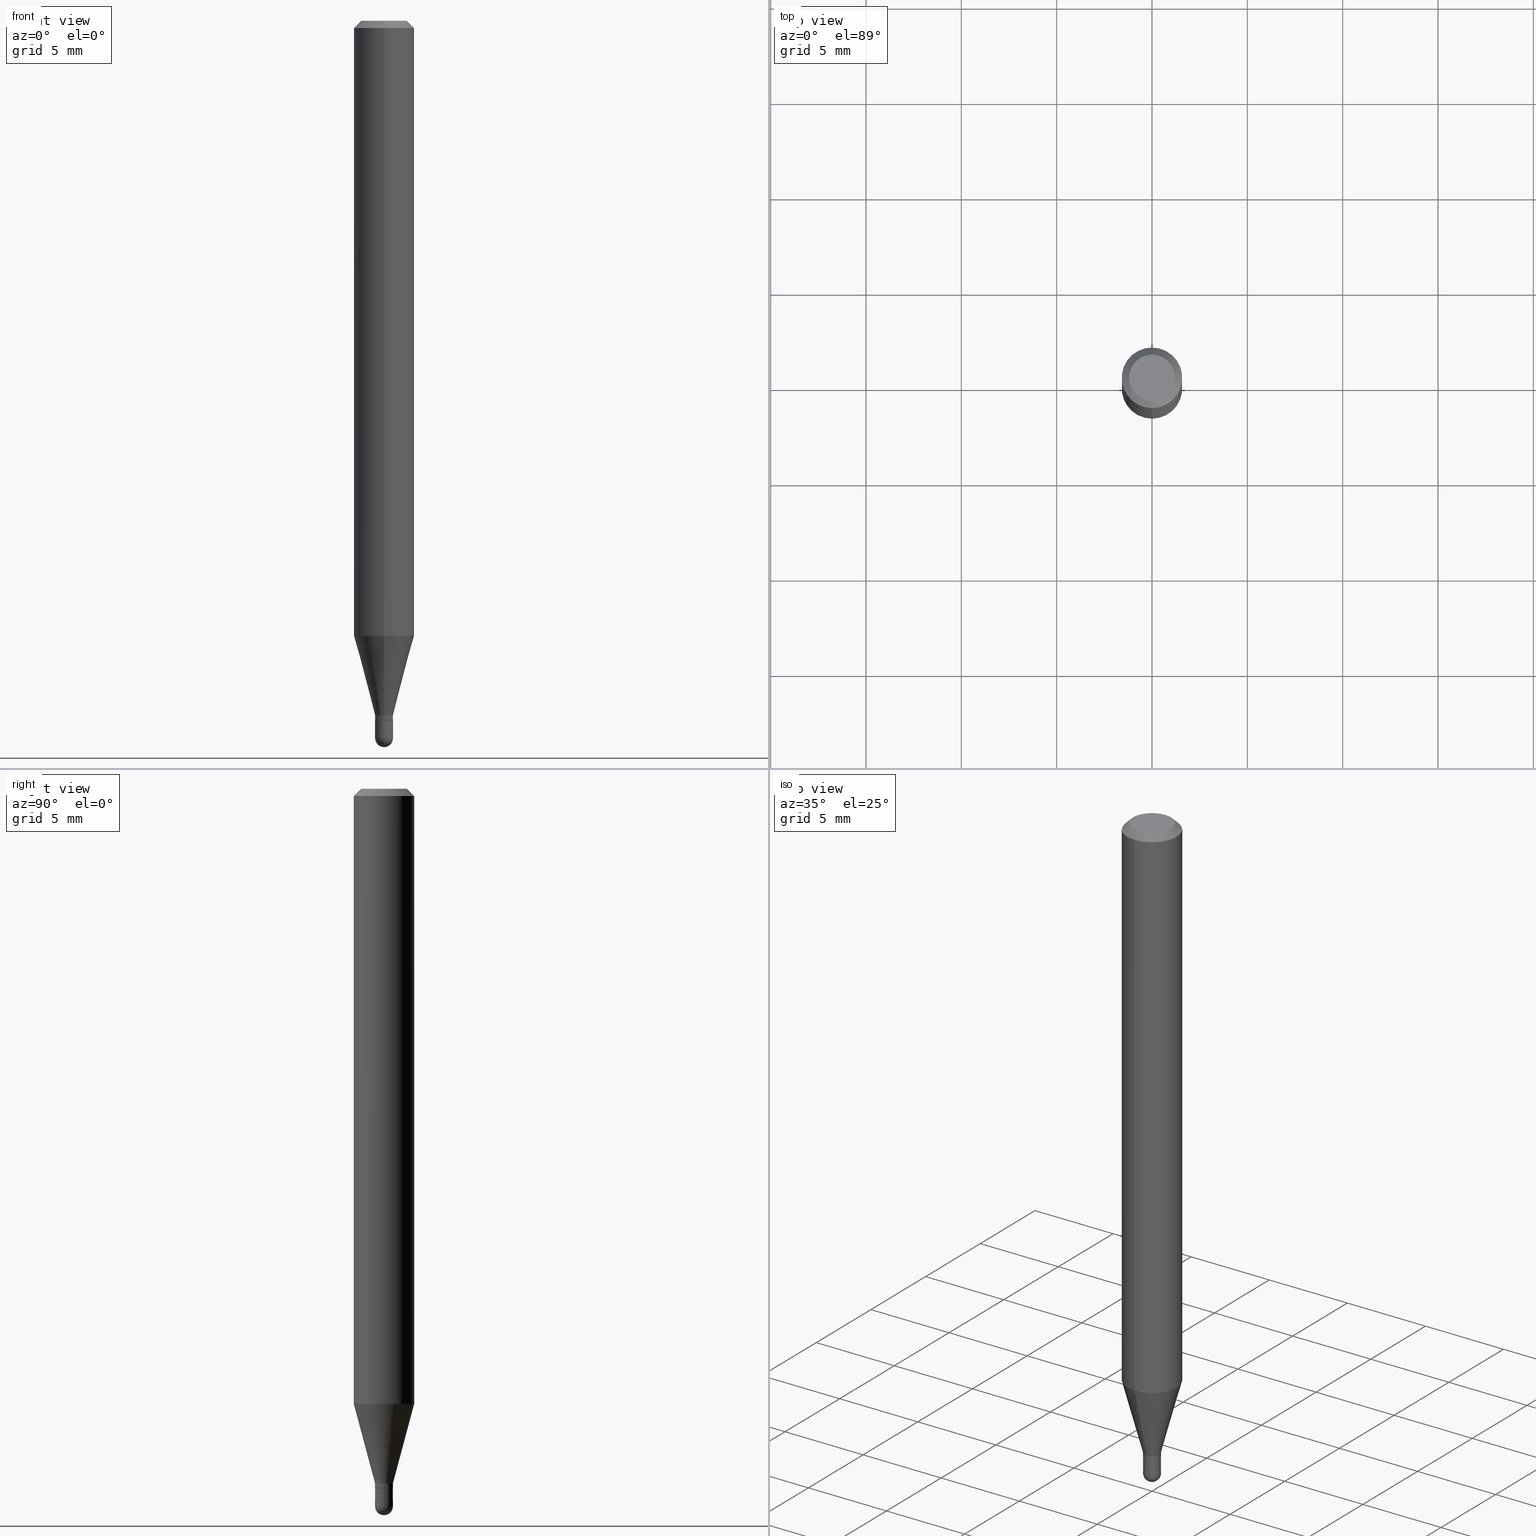
[diagram: canonical four-view strip — front | top / right | iso, engineering-drawing reading convention]
A machine part, canonical four-view strip (front | top / right | iso — engineering-drawing reading convention). The complete STEP part file that produces these views, byte-faithful:
ISO-10303-21;
HEADER;
FILE_DESCRIPTION (( 'STEP AP203' ),
    '1' );
FILE_NAME ('03098.STEP',
    '2024-03-08T18:10:42',
    ( '' ),
    ( '' ),
    'SwSTEP 2.0',
    'SolidWorks 2023',
    '' );
FILE_SCHEMA (( 'CONFIG_CONTROL_DESIGN' ));
ENDSEC;

DATA;
#1 = CARTESIAN_POINT ( 'NONE',  ( -4.364351673553912750E-16, -0.06250000000000005551, -0.01499999999999954321 ) ) ;
#2 = DIRECTION ( 'NONE',  ( -6.982962677686265133E-15, -1.000000000000000000, 0.000000000000000000 ) ) ;
#3 = CONICAL_SURFACE ( 'NONE', #320, 0.01799999999999999864, 0.7853981633974760346 ) ;
#4 = CIRCLE ( 'NONE', #30, 0.01849999999999992623 ) ;
#5 = DIRECTION ( 'NONE',  ( 1.000000000000000000, -6.982962677686266711E-15, 4.876176775795935232E-29 ) ) ;
#6 = DIRECTION ( 'NONE',  ( -6.982962677686265922E-15, -1.000000000000000000, 3.483106191921935554E-15 ) ) ;
#7 = CARTESIAN_POINT ( 'NONE',  ( 3.668182512616006343E-31, -5.237251647062084431E-17, -0.01499999999999976179 ) ) ;
#8 = APPROVAL_STATUS ( 'not_yet_approved' ) ;
#9 = DIRECTION ( 'NONE',  ( -6.982962677686266711E-15, -1.000000000000000000, 3.491501098041445958E-15 ) ) ;
#10 = COORDINATED_UNIVERSAL_TIME_OFFSET ( 5, 0, .BEHIND. ) ;
#11 = CALENDAR_DATE ( 2024, 8, 3 ) ;
#12 = CARTESIAN_POINT ( 'NONE',  ( 1.314504061156179609E-16, 0.01849999999999992276, -6.459277031376646644E-17 ) ) ;
#13 = AXIS2_PLACEMENT_3D ( 'NONE', #482, #368, #47 ) ;
#14 = AXIS2_PLACEMENT_3D ( 'NONE', #462, #195, #119 ) ;
#15 = CYLINDRICAL_SURFACE ( 'NONE', #178, 0.01849999999999992276 ) ;
#16 = CARTESIAN_POINT ( 'NONE',  ( 3.531237032145065066E-29, -5.041727585571848055E-15, -1.444000000000000172 ) ) ;
#17 = ORIENTED_EDGE ( 'NONE', *, *, #113, .F. ) ;
#18 = LENGTH_MEASURE_WITH_UNIT ( LENGTH_MEASURE( 0.02539999999999999897 ), #105 );
#19 = ORIENTED_EDGE ( 'NONE', *, *, #412, .F. ) ;
#20 = PERSON_AND_ORGANIZATION_ROLE ( 'creator' ) ;
#21 = VERTEX_POINT ( 'NONE', #272 ) ;
#22 = ORIENTED_EDGE ( 'NONE', *, *, #254, .F. ) ;
#23 = ORIENTED_EDGE ( 'NONE', *, *, #295, .T. ) ;
#24 = CYLINDRICAL_SURFACE ( 'NONE', #14, 0.06250000000000000000 ) ;
#25 = ORIENTED_EDGE ( 'NONE', *, *, #148, .F. ) ;
#26 = PERSON_AND_ORGANIZATION ( #396, #393 ) ;
#27 = EDGE_CURVE ( 'NONE', #415, #73, #255, .T. ) ;
#28 = CYLINDRICAL_SURFACE ( 'NONE', #208, 0.01849999999999999908 ) ;
#29 = CIRCLE ( 'NONE', #57, 0.01849999999999999908 ) ;
#30 = AXIS2_PLACEMENT_3D ( 'NONE', #245, #357, #161 ) ;
#31 = EDGE_LOOP ( 'NONE', ( #499, #40, #114, #253, #67 ) ) ;
#32 = ORIENTED_EDGE ( 'NONE', *, *, #412, .T. ) ;
#33 = EDGE_CURVE ( 'NONE', #461, #64, #189, .T. ) ;
#34 = CARTESIAN_POINT ( 'NONE',  ( 0.000000000000000000, 0.000000000000000000, 0.000000000000000000 ) ) ;
#35 = EDGE_CURVE ( 'NONE', #492, #461, #169, .T. ) ;
#36 = CYLINDRICAL_SURFACE ( 'NONE', #288, 0.06250000000000000000 ) ;
#37 = DIRECTION ( 'NONE',  ( -6.982962677686265922E-15, -1.000000000000000000, 0.000000000000000000 ) ) ;
#38 = AXIS2_PLACEMENT_3D ( 'NONE', #7, #170, #128 ) ;
#39 = DIRECTION ( 'NONE',  ( -2.445455008410709746E-29, 3.491501098041445170E-15, 1.000000000000000000 ) ) ;
#40 = ORIENTED_EDGE ( 'NONE', *, *, #433, .T. ) ;
#41 = APPROVAL_ROLE ( '' ) ;
#42 = CARTESIAN_POINT ( 'NONE',  ( -1.291848095371605232E-16, -0.01850000000000502978, -1.443500000000000227 ) ) ;
#43 = DIRECTION ( 'NONE',  ( -2.445468806185136877E-29, 3.491481338843145188E-15, 1.000000000000000000 ) ) ;
#44 = CARTESIAN_POINT ( 'NONE',  ( 3.506782482060956982E-29, -5.006812574591430922E-15, -1.433999999999999719 ) ) ;
#45 = CLOSED_SHELL ( 'NONE', ( #429, #493, #271, #49, #222 ) ) ;
#46 = AXIS2_PLACEMENT_3D ( 'NONE', #71, #273, #350 ) ;
#47 = DIRECTION ( 'NONE',  ( -6.982962677686265922E-15, -1.000000000000000000, 0.000000000000000000 ) ) ;
#48 = CARTESIAN_POINT ( 'NONE',  ( -1.291848095371603260E-16, -0.01850000000000492917, -1.433999999999999719 ) ) ;
#49 = ADVANCED_FACE ( 'NONE', ( #398 ), #333, .T. ) ;
#50 = DIRECTION ( 'NONE',  ( 4.937700262164548042E-15, 0.7071067811865451302, -0.7071067811865499042 ) ) ;
#51 = PERSON_AND_ORGANIZATION ( #396, #393 ) ;
#52 = CARTESIAN_POINT ( 'NONE',  ( -1.256933281983174667E-16, -0.01800000000000503975, -1.444000000000000172 ) ) ;
#53 = EDGE_CURVE ( 'NONE', #240, #146, #434, .T. ) ;
#54 =( NAMED_UNIT ( * ) SI_UNIT ( $, .STERADIAN. ) SOLID_ANGLE_UNIT ( ) );
#55 = DIRECTION ( 'NONE',  ( -6.982962677686265922E-15, -1.000000000000000000, 0.000000000000000000 ) ) ;
#56 = ORIENTED_EDGE ( 'NONE', *, *, #386, .T. ) ;
#57 = AXIS2_PLACEMENT_3D ( 'NONE', #263, #219, #173 ) ;
#58 = APPROVAL_ROLE ( '' ) ;
#59 = CIRCLE ( 'NONE', #234, 0.01849999999999992623 ) ;
#60 = EDGE_LOOP ( 'NONE', ( #450, #388, #494, #246 ) ) ;
#61 = COORDINATED_UNIVERSAL_TIME_OFFSET ( 5, 0, .BEHIND. ) ;
#62 = EDGE_CURVE ( 'NONE', #149, #151, #365, .T. ) ;
#63 = CARTESIAN_POINT ( 'NONE',  ( 3.622962036363280209E-29, -5.172629603496120178E-15, -1.481500000000000039 ) ) ;
#64 = VERTEX_POINT ( 'NONE', #1 ) ;
#65 = EDGE_CURVE ( 'NONE', #302, #226, #488, .T. ) ;
#66 = DIRECTION ( 'NONE',  ( 1.000000000000000000, -6.982962677686254089E-15, 0.000000000000000000 ) ) ;
#67 = ORIENTED_EDGE ( 'NONE', *, *, #344, .F. ) ;
#68 = ADVANCED_BREP_SHAPE_REPRESENTATION ( '03098', ( #121, #454, #335 ), #102 ) ;
#69 = VECTOR ( 'NONE', #326, 39.37007874015749564 ) ;
#70 = AXIS2_PLACEMENT_3D ( 'NONE', #75, #321, #468 ) ;
#71 = CARTESIAN_POINT ( 'NONE',  ( 3.105213739144405551E-29, -4.433472356918211735E-15, -1.269789764466969340 ) ) ;
#72 = ORIENTED_EDGE ( 'NONE', *, *, #62, .F. ) ;
#73 = VERTEX_POINT ( 'NONE', #480 ) ;
#74 = ORIENTED_EDGE ( 'NONE', *, *, #280, .F. ) ;
#75 = CARTESIAN_POINT ( 'NONE',  ( 3.622962036363280209E-29, -5.172629603496120178E-15, -1.481500000000000039 ) ) ;
#76 = ORIENTED_EDGE ( 'NONE', *, *, #228, .F. ) ;
#77 = ORIENTED_EDGE ( 'NONE', *, *, #228, .T. ) ;
#78 = APPROVAL_DATE_TIME ( #391, #312 ) ;
#79 = EDGE_CURVE ( 'NONE', #302, #394, #266, .T. ) ;
#80 = DATE_AND_TIME ( #11, #435 ) ;
#81 = CARTESIAN_POINT ( 'NONE',  ( 0.000000000000000000, 0.000000000000000000, 0.000000000000000000 ) ) ;
#82 = CONICAL_SURFACE ( 'NONE', #207, 0.01849999999999992276, 0.2617993877991501850 ) ;
#83 = SHAPE_DEFINITION_REPRESENTATION ( #317, #68 ) ;
#84 = DIRECTION ( 'NONE',  ( -6.982962677686265922E-15, -1.000000000000000000, 3.491501098041445170E-15 ) ) ;
#85 = FACE_OUTER_BOUND ( 'NONE', #236, .T. ) ;
#86 = AXIS2_PLACEMENT_3D ( 'NONE', #252, #366, #139 ) ;
#87 = CONICAL_SURFACE ( 'NONE', #200, 0.06250000000000000000, 0.7853981633974483900 ) ;
#88 = DIRECTION ( 'NONE',  ( -6.982962677686265133E-15, -1.000000000000000000, 0.000000000000000000 ) ) ;
#89 = EDGE_CURVE ( 'NONE', #423, #21, #223, .T. ) ;
#90 = CYLINDRICAL_SURFACE ( 'NONE', #452, 0.01849999999999999908 ) ;
#91 = CARTESIAN_POINT ( 'NONE',  ( 3.531237032145065066E-29, -5.041727585571848055E-15, -1.444000000000000172 ) ) ;
#92 = FACE_OUTER_BOUND ( 'NONE', #157, .T. ) ;
#93 = VECTOR ( 'NONE', #267, 39.37007874015748143 ) ;
#94 = CARTESIAN_POINT ( 'NONE',  ( 4.440892098500933817E-16, 0.06249999999999555217, -1.269789764466969562 ) ) ;
#95 = CARTESIAN_POINT ( 'NONE',  ( 1.291848095372312248E-16, 0.01849999999999495798, -1.444000000000000172 ) ) ;
#96 = LINE ( 'NONE', #98, #232 ) ;
#97 = CARTESIAN_POINT ( 'NONE',  ( 1.314504061156530405E-16, 0.01849999999999491634, -1.433999999999999719 ) ) ;
#98 = CARTESIAN_POINT ( 'NONE',  ( 4.364351673553919652E-16, 0.06249999999999995143, -0.01499999999999997863 ) ) ;
#99 = CARTESIAN_POINT ( 'NONE',  ( 3.531237032145065066E-29, -5.041727585571848055E-15, -1.444000000000000172 ) ) ;
#100 = ORIENTED_EDGE ( 'NONE', *, *, #136, .T. ) ;
#101 = AXIS2_PLACEMENT_3D ( 'NONE', #124, #291, #401 ) ;
#102 =( GEOMETRIC_REPRESENTATION_CONTEXT ( 3 ) GLOBAL_UNCERTAINTY_ASSIGNED_CONTEXT ( ( #251 ) ) GLOBAL_UNIT_ASSIGNED_CONTEXT ( ( #337, #440, #54 ) ) REPRESENTATION_CONTEXT ( 'NONE', 'WORKASPACE' ) );
#103 = DIRECTION ( 'NONE',  ( -2.445468806185136597E-29, 3.491481338843145583E-15, 1.000000000000000000 ) ) ;
#104 = EDGE_LOOP ( 'NONE', ( #390, #358 ) ) ;
#105 =( LENGTH_UNIT ( ) NAMED_UNIT ( * ) SI_UNIT ( $, .METRE. ) );
#106 = EDGE_CURVE ( 'NONE', #423, #198, #485, .T. ) ;
#107 = ORIENTED_EDGE ( 'NONE', *, *, #509, .T. ) ;
#108 = ORIENTED_EDGE ( 'NONE', *, *, #425, .F. ) ;
#109 = ADVANCED_FACE ( 'NONE', ( #166 ), #3, .T. ) ;
#110 = DIRECTION ( 'NONE',  ( 6.982962677686265922E-15, 1.000000000000000000, -3.483106191921935554E-15 ) ) ;
#111 = ORIENTED_EDGE ( 'NONE', *, *, #33, .T. ) ;
#112 = AXIS2_PLACEMENT_3D ( 'NONE', #319, #360, #239 ) ;
#113 = EDGE_CURVE ( 'NONE', #424, #461, #96, .T. ) ;
#114 = ORIENTED_EDGE ( 'NONE', *, *, #156, .T. ) ;
#115 = DIMENSIONAL_EXPONENTS ( 1.000000000000000000, 0.000000000000000000, 0.000000000000000000, 0.000000000000000000, 0.000000000000000000, 0.000000000000000000, 0.000000000000000000 ) ;
#116 = CARTESIAN_POINT ( 'NONE',  ( 3.665830122825232358E-29, -5.240620403132352355E-15, -1.499999999999999778 ) ) ;
#117 = AXIS2_PLACEMENT_3D ( 'NONE', #371, #210, #6 ) ;
#118 = LINE ( 'NONE', #501, #369 ) ;
#119 = DIRECTION ( 'NONE',  ( -6.982962677686265922E-15, -1.000000000000000000, 3.491501098041445170E-15 ) ) ;
#120 = EDGE_CURVE ( 'NONE', #151, #73, #29, .T. ) ;
#121 = MANIFOLD_SOLID_BREP ( 'Body-Move/Copy2[1]', #45 ) ;
#122 = AXIS2_PLACEMENT_3D ( 'NONE', #420, #103, #66 ) ;
#123 = VECTOR ( 'NONE', #505, 39.37007874015748143 ) ;
#124 = CARTESIAN_POINT ( 'NONE',  ( 3.622962036363280209E-29, -5.172629603496120178E-15, -1.481500000000000039 ) ) ;
#125 = EDGE_CURVE ( 'NONE', #394, #302, #303, .T. ) ;
#126 = CARTESIAN_POINT ( 'NONE',  ( 0.01849999999999999908, -1.291848095371959233E-16, 9.020927035222480096E-31 ) ) ;
#127 = APPLICATION_CONTEXT ( 'configuration controlled 3d designs of mechanical parts and assemblies' ) ;
#128 = DIRECTION ( 'NONE',  ( 6.982962677686265922E-15, 1.000000000000000000, -3.483106191921935554E-15 ) ) ;
#129 = CARTESIAN_POINT ( 'NONE',  ( -4.364351673553607559E-16, -0.06250000000000444089, -1.269789764466969118 ) ) ;
#130 = PLANE ( 'NONE',  #427 ) ;
#131 = VECTOR ( 'NONE', #261, 39.37007874015748143 ) ;
#132 = AXIS2_PLACEMENT_3D ( 'NONE', #34, #430, #167 ) ;
#133 = LINE ( 'NONE', #270, #349 ) ;
#134 = DIRECTION ( 'NONE',  ( -2.445455008410709186E-29, 3.491501098041445564E-15, 1.000000000000000000 ) ) ;
#135 = DIRECTION ( 'NONE',  ( -6.982962677686265133E-15, -1.000000000000000000, 0.000000000000000000 ) ) ;
#136 = EDGE_CURVE ( 'NONE', #196, #146, #221, .T. ) ;
#137 = CARTESIAN_POINT ( 'NONE',  ( 0.01849999999999999908, -5.170883862826698675E-15, -1.444000000000000172 ) ) ;
#138 = ORIENTED_EDGE ( 'NONE', *, *, #136, .F. ) ;
#139 = DIRECTION ( 'NONE',  ( -6.982962677686266711E-15, -1.000000000000000000, 3.491501098041445958E-15 ) ) ;
#140 = APPLICATION_CONTEXT ( 'configuration controlled 3d designs of mechanical parts and assemblies' ) ;
#141 = ORIENTED_EDGE ( 'NONE', *, *, #356, .T. ) ;
#142 = VECTOR ( 'NONE', #370, 39.37007874015748143 ) ;
#143 = ORIENTED_EDGE ( 'NONE', *, *, #347, .F. ) ;
#144 = PERSON_AND_ORGANIZATION ( #396, #393 ) ;
#145 = EDGE_LOOP ( 'NONE', ( #275, #268 ) ) ;
#146 = VERTEX_POINT ( 'NONE', #490 ) ;
#147 = PERSON_AND_ORGANIZATION_ROLE ( 'classification_officer' ) ;
#148 = EDGE_CURVE ( 'NONE', #240, #274, #331, .T. ) ;
#149 = VERTEX_POINT ( 'NONE', #479 ) ;
#150 = FACE_OUTER_BOUND ( 'NONE', #304, .T. ) ;
#151 = VERTEX_POINT ( 'NONE', #137 ) ;
#152 = AXIS2_PLACEMENT_3D ( 'NONE', #176, #338, #88 ) ;
#153 = DIRECTION ( 'NONE',  ( -2.445468806185136597E-29, 3.491481338843145583E-15, 1.000000000000000000 ) ) ;
#154 = ORIENTED_EDGE ( 'NONE', *, *, #106, .T. ) ;
#155 = CARTESIAN_POINT ( 'NONE',  ( -1.291848095371953810E-16, -0.01849999999999992276, 6.459277031376646644E-17 ) ) ;
#156 = EDGE_CURVE ( 'NONE', #198, #149, #361, .T. ) ;
#157 = EDGE_LOOP ( 'NONE', ( #56, #100, #384, #204 ) ) ;
#158 = FACE_OUTER_BOUND ( 'NONE', #182, .T. ) ;
#159 = AXIS2_PLACEMENT_3D ( 'NONE', #447, #377, #257 ) ;
#160 = CC_DESIGN_PERSON_AND_ORGANIZATION_ASSIGNMENT ( #225, #20, ( #472 ) ) ;
#161 = DIRECTION ( 'NONE',  ( -6.982962677686265922E-15, -1.000000000000000000, 0.000000000000000000 ) ) ;
#162 = CLOSED_SHELL ( 'NONE', ( #264, #282, #179, #373, #164, #419, #364, #359, #381, #184, #109, #457 ) ) ;
#163 = CARTESIAN_POINT ( 'NONE',  ( 3.506782482060956982E-29, -5.006812574591430922E-15, -1.433999999999999719 ) ) ;
#164 = ADVANCED_FACE ( 'NONE', ( #336 ), #82, .T. ) ;
#165 = CC_DESIGN_APPROVAL ( #407, ( #472 ) ) ;
#166 = FACE_OUTER_BOUND ( 'NONE', #224, .T. ) ;
#167 = DIRECTION ( 'NONE',  ( -6.982962677686265922E-15, -1.000000000000000000, 3.491501098041445170E-15 ) ) ;
#168 = FACE_OUTER_BOUND ( 'NONE', #145, .T. ) ;
#169 = LINE ( 'NONE', #290, #131 ) ;
#170 = DIRECTION ( 'NONE',  ( 2.445455008410709746E-29, -3.491501098041445170E-15, -1.000000000000000000 ) ) ;
#171 = CALENDAR_DATE ( 2024, 8, 3 ) ;
#172 = DIRECTION ( 'NONE',  ( 1.000000000000000000, -6.982962677686265922E-15, 4.883557194083112901E-29 ) ) ;
#173 = DIRECTION ( 'NONE',  ( 1.000000000000000000, -6.982962677686254089E-15, 0.000000000000000000 ) ) ;
#174 = CC_DESIGN_PERSON_AND_ORGANIZATION_ASSIGNMENT ( #265, #413, ( #469 ) ) ;
#175 = CALENDAR_DATE ( 2024, 8, 3 ) ;
#176 = CARTESIAN_POINT ( 'NONE',  ( 3.531237032145065066E-29, -5.041727585571848055E-15, -1.444000000000000172 ) ) ;
#177 = CARTESIAN_POINT ( 'NONE',  ( -1.291848095371603260E-16, -0.01850000000000492917, -1.433999999999999719 ) ) ;
#178 = AXIS2_PLACEMENT_3D ( 'NONE', #409, #289, #218 ) ;
#179 = ADVANCED_FACE ( 'NONE', ( #328 ), #502, .T. ) ;
#180 = DIRECTION ( 'NONE',  ( 2.438088387897960049E-29, -3.491481338843145188E-15, -1.000000000000000000 ) ) ;
#181 = CARTESIAN_POINT ( 'NONE',  ( 3.621379978728298144E-29, -5.174895200074542438E-15, -1.481500000000000039 ) ) ;
#182 = EDGE_LOOP ( 'NONE', ( #456, #230, #309, #72, #141 ) ) ;
#183 = DIRECTION ( 'NONE',  ( 1.000000000000000000, -6.982962677686265922E-15, 4.883557194083112901E-29 ) ) ;
#184 = ADVANCED_FACE ( 'NONE', ( #294 ), #130, .F. ) ;
#185 = ORIENTED_EDGE ( 'NONE', *, *, #459, .F. ) ;
#186 = DATE_TIME_ROLE ( 'creation_date' ) ;
#187 = CARTESIAN_POINT ( 'NONE',  ( 3.668182512616006343E-31, -5.237251647062084431E-17, -0.01499999999999976179 ) ) ;
#188 = ORIENTED_EDGE ( 'NONE', *, *, #399, .F. ) ;
#189 = CIRCLE ( 'NONE', #117, 0.06250000000000000000 ) ;
#190 = EDGE_LOOP ( 'NONE', ( #22, #421, #352, #143 ) ) ;
#191 = PERSON_AND_ORGANIZATION ( #396, #393 ) ;
#192 = APPROVAL_PERSON_ORGANIZATION ( #281, #205, #41 ) ;
#193 = EDGE_LOOP ( 'NONE', ( #138, #311, #475, #382 ) ) ;
#194 = EDGE_CURVE ( 'NONE', #146, #240, #367, .T. ) ;
#195 = DIRECTION ( 'NONE',  ( -2.445455008410709746E-29, 3.491501098041445170E-15, 1.000000000000000000 ) ) ;
#196 = VERTEX_POINT ( 'NONE', #293 ) ;
#197 = SECURITY_CLASSIFICATION_LEVEL ( 'unclassified' ) ;
#198 = VERTEX_POINT ( 'NONE', #446 ) ;
#199 = AXIS2_PLACEMENT_3D ( 'NONE', #408, #172, #55 ) ;
#200 = AXIS2_PLACEMENT_3D ( 'NONE', #187, #460, #110 ) ;
#201 = ORIENTED_EDGE ( 'NONE', *, *, #35, .T. ) ;
#202 = DIRECTION ( 'NONE',  ( -2.445455008410709746E-29, 3.491501098041445170E-15, 1.000000000000000000 ) ) ;
#203 = CARTESIAN_POINT ( 'NONE',  ( 0.000000000000000000, 0.000000000000000000, 0.000000000000000000 ) ) ;
#204 = ORIENTED_EDGE ( 'NONE', *, *, #449, .F. ) ;
#205 = APPROVAL ( #250, 'UNSPECIFIED' ) ;
#206 = DIRECTION ( 'NONE',  ( 1.000000000000000000, -6.982962677686266711E-15, 4.876176775795935232E-29 ) ) ;
#207 = AXIS2_PLACEMENT_3D ( 'NONE', #44, #216, #372 ) ;
#208 = AXIS2_PLACEMENT_3D ( 'NONE', #81, #153, #206 ) ;
#209 = DIRECTION ( 'NONE',  ( -6.982962677686265922E-15, -1.000000000000000000, 4.370956789862821150E-15 ) ) ;
#210 = DIRECTION ( 'NONE',  ( -2.445455008410709746E-29, 3.491501098041445170E-15, 1.000000000000000000 ) ) ;
#211 = LINE ( 'NONE', #97, #142 ) ;
#212 = DIRECTION ( 'NONE',  ( -2.445455008410709746E-29, 3.491501098041445170E-15, 1.000000000000000000 ) ) ;
#213 = CIRCLE ( 'NONE', #86, 0.04749999999999999362 ) ;
#214 = CARTESIAN_POINT ( 'NONE',  ( -0.01849999999999999908, 1.314504061156185279E-16, -9.100029916971574589E-31 ) ) ;
#215 = LOCAL_TIME ( 13, 10, 42.00000000000000000, #10 ) ;
#216 = DIRECTION ( 'NONE',  ( -2.445455008410709746E-29, 3.491501098041445170E-15, 1.000000000000000000 ) ) ;
#217 = DIRECTION ( 'NONE',  ( -4.851104656540964275E-15, -0.7071067811865500152, -0.7071067811865450192 ) ) ;
#218 = DIRECTION ( 'NONE',  ( -6.982962677686265922E-15, -1.000000000000000000, 3.491501098041445170E-15 ) ) ;
#219 = DIRECTION ( 'NONE',  ( -2.445468806185136597E-29, 3.491481338843145583E-15, 1.000000000000000000 ) ) ;
#220 = APPROVAL_STATUS ( 'not_yet_approved' ) ;
#221 = LINE ( 'NONE', #12, #324 ) ;
#222 = ADVANCED_FACE ( 'NONE', ( #378 ), #90, .T. ) ;
#223 = CIRCLE ( 'NONE', #476, 0.01849999999999990888 ) ;
#224 = EDGE_LOOP ( 'NONE', ( #385, #379, #237, #188 ) ) ;
#225 = PERSON_AND_ORGANIZATION ( #396, #393 ) ;
#226 = VERTEX_POINT ( 'NONE', #42 ) ;
#227 = FACE_OUTER_BOUND ( 'NONE', #500, .T. ) ;
#228 = EDGE_CURVE ( 'NONE', #424, #323, #402, .T. ) ;
#229 = DIRECTION ( 'NONE',  ( 1.000000000000000000, -6.982962677686253300E-15, 0.000000000000000000 ) ) ;
#230 = ORIENTED_EDGE ( 'NONE', *, *, #27, .T. ) ;
#231 = ORIENTED_EDGE ( 'NONE', *, *, #509, .F. ) ;
#232 = VECTOR ( 'NONE', #50, 39.37007874015748143 ) ;
#233 = COORDINATED_UNIVERSAL_TIME_OFFSET ( 5, 0, .BEHIND. ) ;
#234 = AXIS2_PLACEMENT_3D ( 'NONE', #470, #508, #392 ) ;
#235 = FACE_OUTER_BOUND ( 'NONE', #60, .T. ) ;
#236 = EDGE_LOOP ( 'NONE', ( #32, #201, #74, #108 ) ) ;
#237 = ORIENTED_EDGE ( 'NONE', *, *, #65, .T. ) ;
#238 = CC_DESIGN_PERSON_AND_ORGANIZATION_ASSIGNMENT ( #26, #422, ( #362 ) ) ;
#239 = DIRECTION ( 'NONE',  ( 6.982962677686265922E-15, 1.000000000000000000, -3.491501098041445564E-15 ) ) ;
#240 = VERTEX_POINT ( 'NONE', #48 ) ;
#241 = VECTOR ( 'NONE', #43, 39.37007874015748143 ) ;
#242 = APPROVAL_DATE_TIME ( #80, #205 ) ;
#243 = APPROVAL_PERSON_ORGANIZATION ( #51, #312, #374 ) ;
#244 = FACE_OUTER_BOUND ( 'NONE', #193, .T. ) ;
#245 = CARTESIAN_POINT ( 'NONE',  ( 3.530014304640859998E-29, -5.039981835022828027E-15, -1.443500000000000227 ) ) ;
#246 = ORIENTED_EDGE ( 'NONE', *, *, #33, .F. ) ;
#247 = CARTESIAN_POINT ( 'NONE',  ( 3.840629472727447874E-16, 0.04749999999999999362, 7.364327909283752044E-17 ) ) ;
#248 = CC_DESIGN_SECURITY_CLASSIFICATION ( #466, ( #362 ) ) ;
#249 = LOCAL_TIME ( 13, 10, 42.00000000000000000, #61 ) ;
#250 = APPROVAL_STATUS ( 'not_yet_approved' ) ;
#251 = UNCERTAINTY_MEASURE_WITH_UNIT (LENGTH_MEASURE( 1.000000000000000082E-05 ), #337, 'distance_accuracy_value', 'NONE');
#252 = CARTESIAN_POINT ( 'NONE',  ( -5.856609959295220328E-45, 8.361781359031840583E-31, 2.394895812498061364E-16 ) ) ;
#253 = ORIENTED_EDGE ( 'NONE', *, *, #62, .T. ) ;
#254 = EDGE_CURVE ( 'NONE', #146, #492, #211, .T. ) ;
#255 = LINE ( 'NONE', #214, #241 ) ;
#256 = CONICAL_SURFACE ( 'NONE', #152, 0.01799999999999999864, 0.7853981633974760346 ) ;
#257 = DIRECTION ( 'NONE',  ( -6.982962677686265922E-15, -1.000000000000000000, 0.000000000000000000 ) ) ;
#258 = APPLICATION_PROTOCOL_DEFINITION ( 'international standard', 'config_control_design', 1994, #140 ) ;
#259 = DIRECTION ( 'NONE',  ( -6.982962677686265922E-15, -1.000000000000000000, 3.483106191921935554E-15 ) ) ;
#260 = DIRECTION ( 'NONE',  ( -2.445468806185136597E-29, 3.491481338843145583E-15, 1.000000000000000000 ) ) ;
#261 = DIRECTION ( 'NONE',  ( -2.445455008410709746E-29, 3.491501098041445564E-15, 1.000000000000000000 ) ) ;
#262 = CARTESIAN_POINT ( 'NONE',  ( 0.000000000000000000, 0.000000000000000000, 0.000000000000000000 ) ) ;
#263 = CARTESIAN_POINT ( 'NONE',  ( 3.531256956131338035E-29, -5.041699053289503466E-15, -1.444000000000000172 ) ) ;
#264 = ADVANCED_FACE ( 'NONE', ( #92 ), #15, .T. ) ;
#265 = PERSON_AND_ORGANIZATION ( #396, #393 ) ;
#266 = CIRCLE ( 'NONE', #510, 0.01799999999999999864 ) ;
#267 = DIRECTION ( 'NONE',  ( -4.937700262164684515E-15, -0.7071067811865646702, 0.7071067811865303643 ) ) ;
#268 = ORIENTED_EDGE ( 'NONE', *, *, #344, .T. ) ;
#269 = AXIS2_PLACEMENT_3D ( 'NONE', #63, #310, #229 ) ;
#270 = CARTESIAN_POINT ( 'NONE',  ( -4.287811248607203282E-16, -0.06250000000000005551, -0.01499999999999954321 ) ) ;
#271 = ADVANCED_FACE ( 'NONE', ( #168 ), #483, .F. ) ;
#272 = CARTESIAN_POINT ( 'NONE',  ( 1.314504061156544210E-16, 0.01849999999999478104, -1.481500000000000039 ) ) ;
#273 = DIRECTION ( 'NONE',  ( -2.445455008410709746E-29, 3.491501098041445170E-15, 1.000000000000000000 ) ) ;
#274 = VERTEX_POINT ( 'NONE', #129 ) ;
#275 = ORIENTED_EDGE ( 'NONE', *, *, #120, .T. ) ;
#276 = ORIENTED_EDGE ( 'NONE', *, *, #295, .F. ) ;
#277 = ORIENTED_EDGE ( 'NONE', *, *, #89, .F. ) ;
#278 = CC_DESIGN_APPROVAL ( #205, ( #466 ) ) ;
#279 = CC_DESIGN_PERSON_AND_ORGANIZATION_ASSIGNMENT ( #191, #147, ( #466 ) ) ;
#280 = EDGE_CURVE ( 'NONE', #64, #461, #463, .T. ) ;
#281 = PERSON_AND_ORGANIZATION ( #396, #393 ) ;
#282 = ADVANCED_FACE ( 'NONE', ( #406 ), #256, .T. ) ;
#283 = CC_DESIGN_APPROVAL ( #312, ( #362 ) ) ;
#284 = DIRECTION ( 'NONE',  ( -2.445455008410709746E-29, 3.491501098041445564E-15, 1.000000000000000000 ) ) ;
#285 = ORIENTED_EDGE ( 'NONE', *, *, #65, .F. ) ;
#286 = FACE_OUTER_BOUND ( 'NONE', #455, .T. ) ;
#287 = AXIS2_PLACEMENT_3D ( 'NONE', #330, #438, #9 ) ;
#288 = AXIS2_PLACEMENT_3D ( 'NONE', #203, #202, #84 ) ;
#289 = DIRECTION ( 'NONE',  ( -2.445455008410709746E-29, 3.491501098041445170E-15, 1.000000000000000000 ) ) ;
#290 = CARTESIAN_POINT ( 'NONE',  ( 4.440892098500625669E-16, 0.06250000000000000000, -2.182188186275903231E-16 ) ) ;
#291 = DIRECTION ( 'NONE',  ( -2.445468806185136597E-29, 3.491481338843145583E-15, 1.000000000000000000 ) ) ;
#292 = DIRECTION ( 'NONE',  ( -2.445468806185136877E-29, 3.491481338843145188E-15, 1.000000000000000000 ) ) ;
#293 = CARTESIAN_POINT ( 'NONE',  ( 1.314504061156528433E-16, 0.01849999999999482267, -1.443500000000000227 ) ) ;
#294 = FACE_OUTER_BOUND ( 'NONE', #104, .T. ) ;
#295 = EDGE_CURVE ( 'NONE', #323, #424, #213, .T. ) ;
#296 = AXIS2_PLACEMENT_3D ( 'NONE', #16, #339, #135 ) ;
#297 = CARTESIAN_POINT ( 'NONE',  ( 3.668182512616006343E-31, -5.237251647062084431E-17, -0.01499999999999976179 ) ) ;
#298 = AXIS2_PLACEMENT_3D ( 'NONE', #397, #39, #209 ) ;
#299 = DIRECTION ( 'NONE',  ( -2.445455008410709746E-29, 3.491501098041445564E-15, 1.000000000000000000 ) ) ;
#300 = CARTESIAN_POINT ( 'NONE',  ( 3.622962036363280209E-29, -5.172629603496120178E-15, -1.481500000000000039 ) ) ;
#301 = DIRECTION ( 'NONE',  ( 1.000000000000000000, -7.105427357601001070E-15, 4.926315508542082329E-29 ) ) ;
#302 = VERTEX_POINT ( 'NONE', #498 ) ;
#303 = CIRCLE ( 'NONE', #296, 0.01799999999999999864 ) ;
#304 = EDGE_LOOP ( 'NONE', ( #231, #76, #351, #111 ) ) ;
#305 = CIRCLE ( 'NONE', #298, 0.06250000000000000000 ) ;
#306 = ORIENTED_EDGE ( 'NONE', *, *, #254, .T. ) ;
#307 = DIRECTION ( 'NONE',  ( -6.982962677686265922E-15, -1.000000000000000000, 0.000000000000000000 ) ) ;
#308 = EDGE_LOOP ( 'NONE', ( #411, #306, #19, #25 ) ) ;
#309 = ORIENTED_EDGE ( 'NONE', *, *, #120, .F. ) ;
#310 = DIRECTION ( 'NONE',  ( -2.445468806185136597E-29, 3.491481338843145583E-15, 1.000000000000000000 ) ) ;
#311 = ORIENTED_EDGE ( 'NONE', *, *, #399, .T. ) ;
#312 = APPROVAL ( #220, 'UNSPECIFIED' ) ;
#313 = ORIENTED_EDGE ( 'NONE', *, *, #106, .F. ) ;
#314 = CONICAL_SURFACE ( 'NONE', #495, 0.01849999999999992276, 0.2617993877991501850 ) ;
#315 = DATE_AND_TIME ( #387, #403 ) ;
#316 = PLANE ( 'NONE',  #112 ) ;
#317 = PRODUCT_DEFINITION_SHAPE ( 'NONE', 'NONE',  #472 ) ;
#318 = DIRECTION ( 'NONE',  ( -2.445455008410709746E-29, 3.491501098041445564E-15, 1.000000000000000000 ) ) ;
#319 = CARTESIAN_POINT ( 'NONE',  ( 3.316907271900976096E-16, 0.04749999999999999362, -4.610151153206555393E-17 ) ) ;
#320 = AXIS2_PLACEMENT_3D ( 'NONE', #91, #436, #404 ) ;
#321 = DIRECTION ( 'NONE',  ( -2.445468806185136597E-29, 3.491481338843145583E-15, 1.000000000000000000 ) ) ;
#322 = CARTESIAN_POINT ( 'NONE',  ( 1.278976924368533253E-16, 0.01799999999999495753, -1.444000000000000172 ) ) ;
#323 = VERTEX_POINT ( 'NONE', #342 ) ;
#324 = VECTOR ( 'NONE', #299, 39.37007874015748143 ) ;
#325 = CIRCLE ( 'NONE', #486, 0.01850000000000000255 ) ;
#326 = DIRECTION ( 'NONE',  ( -1.807323732225329350E-15, -0.2588190451025180194, 0.9659258262890689783 ) ) ;
#327 = DIRECTION ( 'NONE',  ( -6.982962677686265922E-15, -1.000000000000000000, 0.000000000000000000 ) ) ;
#328 = FACE_OUTER_BOUND ( 'NONE', #348, .T. ) ;
#329 = APPROVAL_DATE_TIME ( #383, #407 ) ;
#330 = CARTESIAN_POINT ( 'NONE',  ( -5.856609959295220328E-45, 8.361781359031840583E-31, 2.394895812498061364E-16 ) ) ;
#331 = LINE ( 'NONE', #177, #69 ) ;
#332 = DATE_AND_TIME ( #405, #453 ) ;
#333 = SPHERICAL_SURFACE ( 'NONE', #199, 0.01849999999999990888 ) ;
#334 = AXIS2_PLACEMENT_3D ( 'NONE', #163, #478, #327 ) ;
#335 = AXIS2_PLACEMENT_3D ( 'NONE', #448, #346, #451 ) ;
#336 = FACE_OUTER_BOUND ( 'NONE', #308, .T. ) ;
#337 =( CONVERSION_BASED_UNIT ( 'INCH', #18 ) LENGTH_UNIT ( ) NAMED_UNIT ( #115 ) );
#338 = DIRECTION ( 'NONE',  ( -2.445455008410709746E-29, 3.491501098041445170E-15, 1.000000000000000000 ) ) ;
#339 = DIRECTION ( 'NONE',  ( -2.445455008410709746E-29, 3.491501098041445170E-15, 1.000000000000000000 ) ) ;
#340 = EDGE_LOOP ( 'NONE', ( #277, #154, #345, #185 ) ) ;
#341 = MECHANICAL_CONTEXT ( 'NONE', #127, 'mechanical' ) ;
#342 = CARTESIAN_POINT ( 'NONE',  ( -3.773273898774340269E-16, -0.04749999999999999362, 4.053358834067748017E-16 ) ) ;
#343 = CC_DESIGN_DATE_AND_TIME_ASSIGNMENT ( #332, #186, ( #472 ) ) ;
#344 = EDGE_CURVE ( 'NONE', #73, #151, #353, .T. ) ;
#345 = ORIENTED_EDGE ( 'NONE', *, *, #433, .F. ) ;
#346 = DIRECTION ( 'NONE',  ( 0.000000000000000000, 0.000000000000000000, 1.000000000000000000 ) ) ;
#347 = EDGE_CURVE ( 'NONE', #492, #274, #414, .T. ) ;
#348 = EDGE_LOOP ( 'NONE', ( #276, #107, #458, #17 ) ) ;
#349 = VECTOR ( 'NONE', #217, 39.37007874015748143 ) ;
#350 = DIRECTION ( 'NONE',  ( -6.982962677686265922E-15, -1.000000000000000000, 4.370956789862821150E-15 ) ) ;
#351 = ORIENTED_EDGE ( 'NONE', *, *, #113, .T. ) ;
#352 = ORIENTED_EDGE ( 'NONE', *, *, #148, .T. ) ;
#353 = CIRCLE ( 'NONE', #122, 0.01849999999999999908 ) ;
#354 = VECTOR ( 'NONE', #318, 39.37007874015748143 ) ;
#355 = CARTESIAN_POINT ( 'NONE',  ( 3.506782482060956982E-29, -5.006812574591430922E-15, -1.433999999999999719 ) ) ;
#356 = EDGE_CURVE ( 'NONE', #149, #21, #511, .T. ) ;
#357 = DIRECTION ( 'NONE',  ( -2.445455008410709746E-29, 3.491501098041445170E-15, 1.000000000000000000 ) ) ;
#358 = ORIENTED_EDGE ( 'NONE', *, *, #125, .F. ) ;
#359 = ADVANCED_FACE ( 'NONE', ( #150 ), #87, .T. ) ;
#360 = DIRECTION ( 'NONE',  ( 2.445455008410709186E-29, -3.491501098041445564E-15, -1.000000000000000000 ) ) ;
#361 = CIRCLE ( 'NONE', #101, 0.01850000000000000255 ) ;
#362 = PRODUCT_DEFINITION_FORMATION_WITH_SPECIFIED_SOURCE ( 'ANY', '', #469, .NOT_KNOWN. ) ;
#363 = CARTESIAN_POINT ( 'NONE',  ( -0.01850000000000000255, -4.975713922277193565E-15, -1.481500000000000039 ) ) ;
#364 = ADVANCED_FACE ( 'NONE', ( #235 ), #24, .T. ) ;
#365 = LINE ( 'NONE', #126, #441 ) ;
#366 = DIRECTION ( 'NONE',  ( -2.445455008410709746E-29, 3.491501098041445170E-15, 1.000000000000000000 ) ) ;
#367 = CIRCLE ( 'NONE', #334, 0.01849999999999992276 ) ;
#368 = DIRECTION ( 'NONE',  ( -2.445455008410709746E-29, 3.491501098041445170E-15, 1.000000000000000000 ) ) ;
#369 = VECTOR ( 'NONE', #284, 39.37007874015748143 ) ;
#370 = DIRECTION ( 'NONE',  ( 1.839019923739599526E-15, 0.2588190451025248473, 0.9659258262890670910 ) ) ;
#371 = CARTESIAN_POINT ( 'NONE',  ( 3.668182512616006343E-31, -5.237251647062084431E-17, -0.01499999999999976179 ) ) ;
#372 = DIRECTION ( 'NONE',  ( -6.982962677686265922E-15, -1.000000000000000000, 0.000000000000000000 ) ) ;
#373 = ADVANCED_FACE ( 'NONE', ( #85 ), #36, .T. ) ;
#374 = APPROVAL_ROLE ( '' ) ;
#375 = DIRECTION ( 'NONE',  ( -2.445468806185136597E-29, 3.491481338843145583E-15, 1.000000000000000000 ) ) ;
#376 = COORDINATED_UNIVERSAL_TIME_OFFSET ( 5, 0, .BEHIND. ) ;
#377 = DIRECTION ( 'NONE',  ( -1.000000000000000000, 6.982962677686265922E-15, -4.883557194083112340E-29 ) ) ;
#378 = FACE_OUTER_BOUND ( 'NONE', #31, .T. ) ;
#379 = ORIENTED_EDGE ( 'NONE', *, *, #125, .T. ) ;
#380 = CARTESIAN_POINT ( 'NONE',  ( 4.440892098500937762E-16, 0.06249999999999993755, -0.01499999999999997863 ) ) ;
#381 = ADVANCED_FACE ( 'NONE', ( #286 ), #316, .F. ) ;
#382 = ORIENTED_EDGE ( 'NONE', *, *, #194, .F. ) ;
#383 = DATE_AND_TIME ( #171, #249 ) ;
#384 = ORIENTED_EDGE ( 'NONE', *, *, #53, .F. ) ;
#385 = ORIENTED_EDGE ( 'NONE', *, *, #437, .F. ) ;
#386 = EDGE_CURVE ( 'NONE', #226, #196, #4, .T. ) ;
#387 = CALENDAR_DATE ( 2024, 8, 3 ) ;
#388 = ORIENTED_EDGE ( 'NONE', *, *, #347, .T. ) ;
#389 = PERSON_AND_ORGANIZATION_ROLE ( 'design_supplier' ) ;
#390 = ORIENTED_EDGE ( 'NONE', *, *, #79, .F. ) ;
#391 = DATE_AND_TIME ( #175, #215 ) ;
#392 = DIRECTION ( 'NONE',  ( -6.982962677686265922E-15, -1.000000000000000000, 0.000000000000000000 ) ) ;
#393 = ORGANIZATION ( 'UNSPECIFIED', 'UNSPECIFIED', '' ) ;
#394 = VERTEX_POINT ( 'NONE', #431 ) ;
#395 = CYLINDRICAL_SURFACE ( 'NONE', #132, 0.01849999999999992276 ) ;
#396 = PERSON ( 'UNSPECIFIED', 'UNSPECIFIED', 'UNSPECIFIED', ('UNSPECIFIED'), ('UNSPECIFIED'), ('UNSPECIFIED') ) ;
#397 = CARTESIAN_POINT ( 'NONE',  ( 3.105213739144405551E-29, -4.433472356918211735E-15, -1.269789764466969340 ) ) ;
#398 = FACE_OUTER_BOUND ( 'NONE', #340, .T. ) ;
#399 = EDGE_CURVE ( 'NONE', #196, #226, #59, .T. ) ;
#400 = DIRECTION ( 'NONE',  ( -2.445455008410709746E-29, 3.491501098041445170E-15, 1.000000000000000000 ) ) ;
#401 = DIRECTION ( 'NONE',  ( 1.000000000000000000, -6.982962677686253300E-15, 0.000000000000000000 ) ) ;
#402 = CIRCLE ( 'NONE', #287, 0.04749999999999999362 ) ;
#403 = LOCAL_TIME ( 13, 10, 42.00000000000000000, #233 ) ;
#404 = DIRECTION ( 'NONE',  ( -6.982962677686265133E-15, -1.000000000000000000, 0.000000000000000000 ) ) ;
#405 = CALENDAR_DATE ( 2024, 8, 3 ) ;
#406 = FACE_OUTER_BOUND ( 'NONE', #506, .T. ) ;
#407 = APPROVAL ( #8, 'UNSPECIFIED' ) ;
#408 = CARTESIAN_POINT ( 'NONE',  ( 3.621379978728298144E-29, -5.174895200074542438E-15, -1.481500000000000039 ) ) ;
#409 = CARTESIAN_POINT ( 'NONE',  ( 0.000000000000000000, 0.000000000000000000, 0.000000000000000000 ) ) ;
#410 = CC_DESIGN_DATE_AND_TIME_ASSIGNMENT ( #315, #467, ( #466 ) ) ;
#411 = ORIENTED_EDGE ( 'NONE', *, *, #53, .T. ) ;
#412 = EDGE_CURVE ( 'NONE', #274, #492, #305, .T. ) ;
#413 = PERSON_AND_ORGANIZATION_ROLE ( 'design_owner' ) ;
#414 = CIRCLE ( 'NONE', #46, 0.06250000000000000000 ) ;
#415 = VERTEX_POINT ( 'NONE', #363 ) ;
#416 = PRODUCT_RELATED_PRODUCT_CATEGORY ( 'detail', '', ( #469 ) ) ;
#417 = ORIENTED_EDGE ( 'NONE', *, *, #79, .T. ) ;
#418 = SPHERICAL_SURFACE ( 'NONE', #477, 0.01849999999999990888 ) ;
#419 = ADVANCED_FACE ( 'NONE', ( #426 ), #314, .T. ) ;
#420 = CARTESIAN_POINT ( 'NONE',  ( 3.531256956131338035E-29, -5.041699053289503466E-15, -1.444000000000000172 ) ) ;
#421 = ORIENTED_EDGE ( 'NONE', *, *, #194, .T. ) ;
#422 = PERSON_AND_ORGANIZATION_ROLE ( 'creator' ) ;
#423 = VERTEX_POINT ( 'NONE', #116 ) ;
#424 = VERTEX_POINT ( 'NONE', #247 ) ;
#425 = EDGE_CURVE ( 'NONE', #274, #64, #118, .T. ) ;
#426 = FACE_OUTER_BOUND ( 'NONE', #190, .T. ) ;
#427 = AXIS2_PLACEMENT_3D ( 'NONE', #443, #134, #442 ) ;
#428 = APPROVAL_PERSON_ORGANIZATION ( #144, #407, #58 ) ;
#429 = ADVANCED_FACE ( 'NONE', ( #158 ), #28, .T. ) ;
#430 = DIRECTION ( 'NONE',  ( -2.445455008410709746E-29, 3.491501098041445170E-15, 1.000000000000000000 ) ) ;
#431 = CARTESIAN_POINT ( 'NONE',  ( 1.296740492762533062E-16, 0.01799999999999495753, -1.444000000000000172 ) ) ;
#432 = DESIGN_CONTEXT ( 'detailed design', #140, 'design' ) ;
#433 = EDGE_CURVE ( 'NONE', #415, #198, #503, .T. ) ;
#434 = CIRCLE ( 'NONE', #13, 0.01849999999999992276 ) ;
#435 = LOCAL_TIME ( 13, 10, 42.00000000000000000, #376 ) ;
#436 = DIRECTION ( 'NONE',  ( -2.445455008410709746E-29, 3.491501098041445170E-15, 1.000000000000000000 ) ) ;
#437 = EDGE_CURVE ( 'NONE', #394, #196, #512, .T. ) ;
#438 = DIRECTION ( 'NONE',  ( -2.445455008410709746E-29, 3.491501098041445170E-15, 1.000000000000000000 ) ) ;
#439 = DIRECTION ( 'NONE',  ( 7.105427357601001859E-15, 1.000000000000000000, 0.000000000000000000 ) ) ;
#440 =( NAMED_UNIT ( * ) PLANE_ANGLE_UNIT ( ) SI_UNIT ( $, .RADIAN. ) );
#441 = VECTOR ( 'NONE', #292, 39.37007874015748143 ) ;
#442 = DIRECTION ( 'NONE',  ( -6.982962677686265922E-15, -1.000000000000000000, 3.491501098041445564E-15 ) ) ;
#443 = CARTESIAN_POINT ( 'NONE',  ( 3.531237032145065066E-29, -5.041727585571848055E-15, -1.444000000000000172 ) ) ;
#444 = DIRECTION ( 'NONE',  ( 1.000000000000000000, -6.982962677686253300E-15, 0.000000000000000000 ) ) ;
#445 = CC_DESIGN_PERSON_AND_ORGANIZATION_ASSIGNMENT ( #507, #389, ( #362 ) ) ;
#446 = CARTESIAN_POINT ( 'NONE',  ( -1.291848095371593892E-16, -0.01850000000000513040, -1.481500000000000039 ) ) ;
#447 = CARTESIAN_POINT ( 'NONE',  ( 3.621379978728298144E-29, -5.174895200074542438E-15, -1.481500000000000039 ) ) ;
#448 = CARTESIAN_POINT ( 'NONE',  ( 0.000000000000000000, 0.000000000000000000, 0.000000000000000000 ) ) ;
#449 = EDGE_CURVE ( 'NONE', #226, #240, #474, .T. ) ;
#450 = ORIENTED_EDGE ( 'NONE', *, *, #35, .F. ) ;
#451 = DIRECTION ( 'NONE',  ( 1.000000000000000000, 0.000000000000000000, 0.000000000000000000 ) ) ;
#452 = AXIS2_PLACEMENT_3D ( 'NONE', #262, #375, #5 ) ;
#453 = LOCAL_TIME ( 13, 10, 42.00000000000000000, #481 ) ;
#454 = MANIFOLD_SOLID_BREP ( 'Body-Move/Copy2[2]', #162 ) ;
#455 = EDGE_LOOP ( 'NONE', ( #77, #23 ) ) ;
#456 = ORIENTED_EDGE ( 'NONE', *, *, #459, .T. ) ;
#457 = ADVANCED_FACE ( 'NONE', ( #244 ), #395, .T. ) ;
#458 = ORIENTED_EDGE ( 'NONE', *, *, #280, .T. ) ;
#459 = EDGE_CURVE ( 'NONE', #21, #415, #325, .T. ) ;
#460 = DIRECTION ( 'NONE',  ( 2.445455008410709746E-29, -3.491501098041445170E-15, -1.000000000000000000 ) ) ;
#461 = VERTEX_POINT ( 'NONE', #380 ) ;
#462 = CARTESIAN_POINT ( 'NONE',  ( 0.000000000000000000, 0.000000000000000000, 0.000000000000000000 ) ) ;
#463 = CIRCLE ( 'NONE', #471, 0.06250000000000000000 ) ;
#464 = AXIS2_PLACEMENT_3D ( 'NONE', #95, #180, #489 ) ;
#465 = ORIENTED_EDGE ( 'NONE', *, *, #437, .T. ) ;
#466 = SECURITY_CLASSIFICATION ( '', '', #197 ) ;
#467 = DATE_TIME_ROLE ( 'classification_date' ) ;
#468 = DIRECTION ( 'NONE',  ( 1.000000000000000000, -6.982962677686253300E-15, 0.000000000000000000 ) ) ;
#469 = PRODUCT ( '03098', '03098', '', ( #341 ) ) ;
#470 = CARTESIAN_POINT ( 'NONE',  ( 3.530014304640859998E-29, -5.039981835022828027E-15, -1.443500000000000227 ) ) ;
#471 = AXIS2_PLACEMENT_3D ( 'NONE', #297, #400, #259 ) ;
#472 = PRODUCT_DEFINITION ( 'UNKNOWN', '', #362, #432 ) ;
#473 = DIRECTION ( 'NONE',  ( -2.445455008410709746E-29, 3.491501098041445170E-15, 1.000000000000000000 ) ) ;
#474 = LINE ( 'NONE', #155, #354 ) ;
#475 = ORIENTED_EDGE ( 'NONE', *, *, #449, .T. ) ;
#476 = AXIS2_PLACEMENT_3D ( 'NONE', #181, #301, #439 ) ;
#477 = AXIS2_PLACEMENT_3D ( 'NONE', #484, #183, #307 ) ;
#478 = DIRECTION ( 'NONE',  ( -2.445455008410709746E-29, 3.491501098041445170E-15, 1.000000000000000000 ) ) ;
#479 = CARTESIAN_POINT ( 'NONE',  ( 0.01850000000000000255, -5.236349137930007031E-15, -1.481500000000000039 ) ) ;
#480 = CARTESIAN_POINT ( 'NONE',  ( -0.01849999999999999908, -4.975713922277193565E-15, -1.444000000000000172 ) ) ;
#481 = COORDINATED_UNIVERSAL_TIME_OFFSET ( 5, 0, .BEHIND. ) ;
#482 = CARTESIAN_POINT ( 'NONE',  ( 3.506782482060956982E-29, -5.006812574591430922E-15, -1.433999999999999719 ) ) ;
#483 = PLANE ( 'NONE',  #464 ) ;
#484 = CARTESIAN_POINT ( 'NONE',  ( 3.621379978728298144E-29, -5.174895200074542438E-15, -1.481500000000000039 ) ) ;
#485 = CIRCLE ( 'NONE', #159, 0.01849999999999990888 ) ;
#486 = AXIS2_PLACEMENT_3D ( 'NONE', #300, #260, #444 ) ;
#487 = APPLICATION_PROTOCOL_DEFINITION ( 'international standard', 'config_control_design', 1994, #127 ) ;
#488 = LINE ( 'NONE', #52, #93 ) ;
#489 = DIRECTION ( 'NONE',  ( -1.000000000000000000, 6.982962677686265922E-15, -4.876176775795935793E-29 ) ) ;
#490 = CARTESIAN_POINT ( 'NONE',  ( 2.877698079828734700E-16, 0.01849999999999491634, -1.433999999999999719 ) ) ;
#491 = ORIENTED_EDGE ( 'NONE', *, *, #386, .F. ) ;
#492 = VERTEX_POINT ( 'NONE', #94 ) ;
#493 = ADVANCED_FACE ( 'NONE', ( #227 ), #418, .T. ) ;
#494 = ORIENTED_EDGE ( 'NONE', *, *, #425, .T. ) ;
#495 = AXIS2_PLACEMENT_3D ( 'NONE', #355, #473, #37 ) ;
#496 = ORIENTED_EDGE ( 'NONE', *, *, #356, .F. ) ;
#497 = ORIENTED_EDGE ( 'NONE', *, *, #156, .F. ) ;
#498 = CARTESIAN_POINT ( 'NONE',  ( -1.256933281983174667E-16, -0.01800000000000503975, -1.444000000000000172 ) ) ;
#499 = ORIENTED_EDGE ( 'NONE', *, *, #27, .F. ) ;
#500 = EDGE_LOOP ( 'NONE', ( #313, #504, #496, #497 ) ) ;
#501 = CARTESIAN_POINT ( 'NONE',  ( -4.364351673553916201E-16, -0.06250000000000000000, 2.182188186275903231E-16 ) ) ;
#502 = CONICAL_SURFACE ( 'NONE', #38, 0.06250000000000000000, 0.7853981633974483900 ) ;
#503 = CIRCLE ( 'NONE', #70, 0.01850000000000000255 ) ;
#504 = ORIENTED_EDGE ( 'NONE', *, *, #89, .T. ) ;
#505 = DIRECTION ( 'NONE',  ( 5.024295867788201229E-15, 0.7071067811865695552, 0.7071067811865254793 ) ) ;
#506 = EDGE_LOOP ( 'NONE', ( #417, #465, #491, #285 ) ) ;
#507 = PERSON_AND_ORGANIZATION ( #396, #393 ) ;
#508 = DIRECTION ( 'NONE',  ( -2.445455008410709746E-29, 3.491501098041445170E-15, 1.000000000000000000 ) ) ;
#509 = EDGE_CURVE ( 'NONE', #323, #64, #133, .T. ) ;
#510 = AXIS2_PLACEMENT_3D ( 'NONE', #99, #212, #2 ) ;
#511 = CIRCLE ( 'NONE', #269, 0.01850000000000000255 ) ;
#512 = LINE ( 'NONE', #322, #123 ) ;
ENDSEC;
END-ISO-10303-21;
